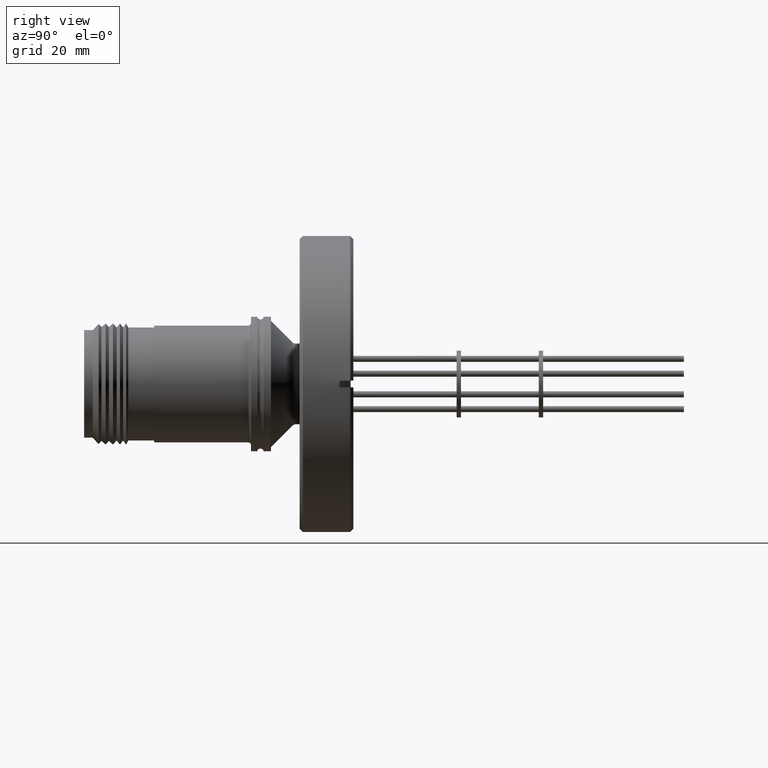
[diagram: clean part render]
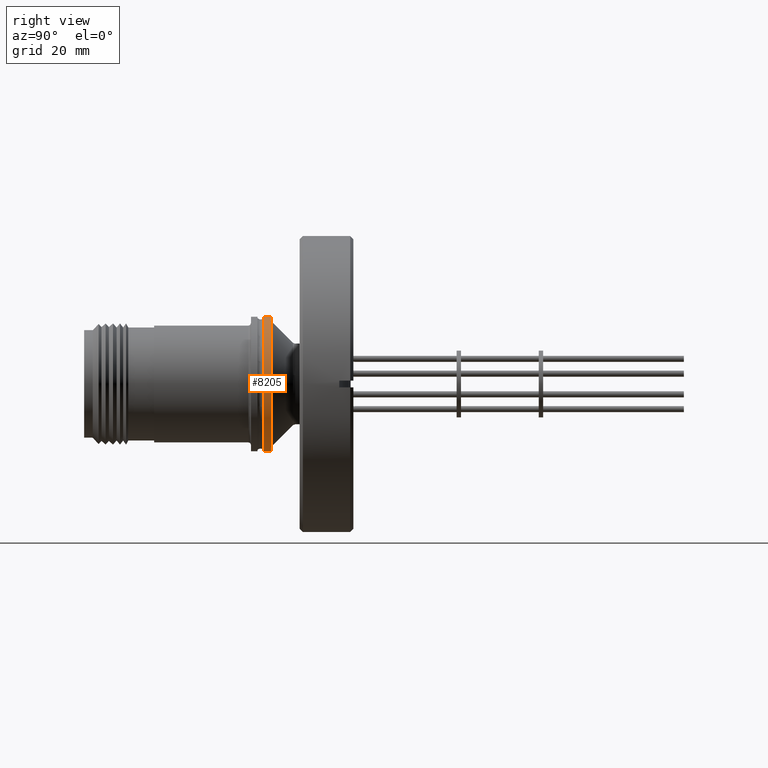
[diagram: same view with one face highlighted and labeled with its STEP entity id]
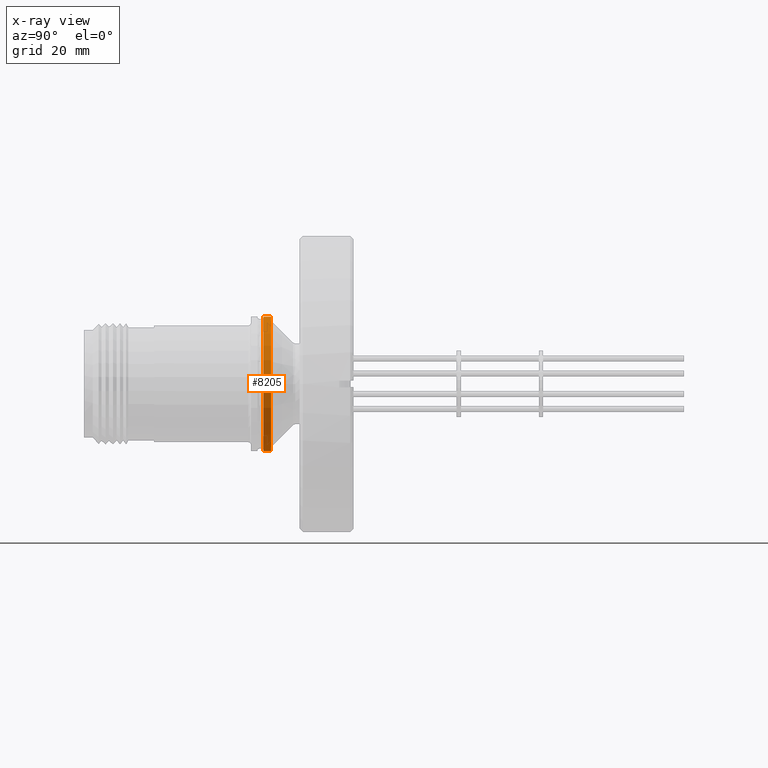
[diagram: x-ray of the same camera — body ghosted, the highlighted face saturated]
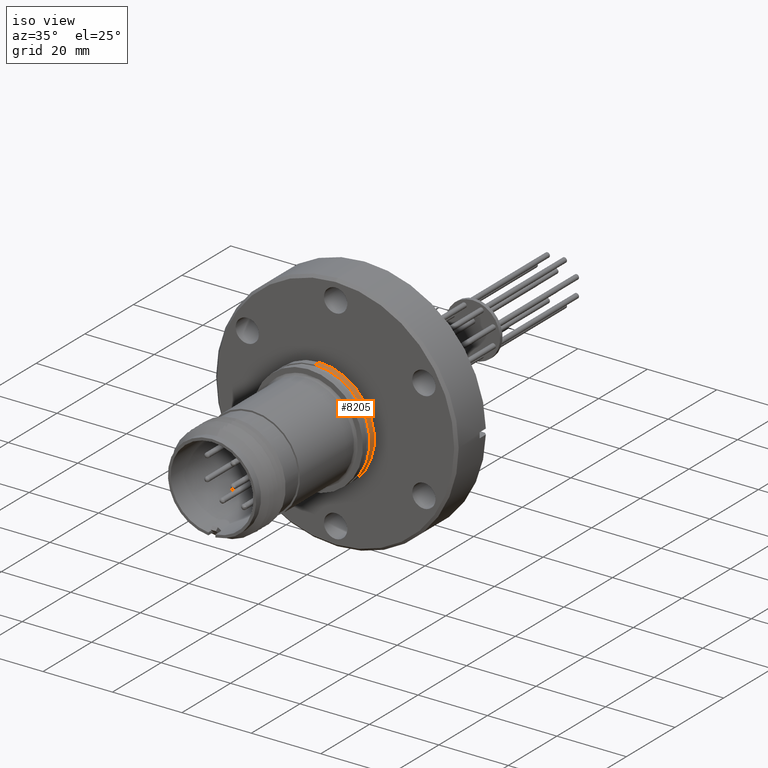
[diagram: same view with one face highlighted and labeled with its STEP entity id]
A machine part, right view. The second image highlights one B-rep face of the part: STEP entity #8205.
The next image is the same camera in x-ray: the body ghosted, the highlighted face saturated — about 0% of this face is hidden behind the body in this view.
A second angle (iso view) of the same face is appended — the face is thin or edge-on in the first view.
In plain terms, the highlighted cylindrical surface (partial cylindrical patch) has radius 15.875 mm, axis along (0, -1, 0).
Its self-contained STEP definition (entity closure, byte-faithful):
#65 = DIRECTION ( 'NONE',  ( 0.0000000000000000000, 0.0000000000000000000, -1.000000000000000000 ) ) ;
#375 = CARTESIAN_POINT ( 'NONE',  ( 0.0000000000000000000, 0.9566508829132344100, 0.0000000000000000000 ) ) ;
#376 = DIRECTION ( 'NONE',  ( 0.0000000000000000000, -1.000000000000000000, 0.0000000000000000000 ) ) ;
#625 = FACE_OUTER_BOUND ( 'NONE', #13191, .T. ) ;
#629 = CYLINDRICAL_SURFACE ( 'NONE', #9067, 0.6250000000000014400 ) ;
#1495 = VERTEX_POINT ( 'NONE', #12959 ) ;
#1499 = VERTEX_POINT ( 'NONE', #12955 ) ;
#1668 = VERTEX_POINT ( 'NONE', #12762 ) ;
#4409 = CARTESIAN_POINT ( 'NONE',  ( 0.0000000000000000000, 0.9866508829132342200, -0.6250000000000014400 ) ) ;
#7096 = ORIENTED_EDGE ( 'NONE', *, *, #10077, .T. ) ;
#7150 = ORIENTED_EDGE ( 'NONE', *, *, #10166, .F. ) ;
#7154 = ORIENTED_EDGE ( 'NONE', *, *, #10052, .F. ) ;
#7156 = ORIENTED_EDGE ( 'NONE', *, *, #10058, .T. ) ;
#8205 = ADVANCED_FACE ( 'NONE', ( #625 ), #629, .T. ) ;
#8943 = CARTESIAN_POINT ( 'NONE',  ( 0.0000000000000000000, 0.9156508829132346000, 0.0000000000000000000 ) ) ;
#8944 = DIRECTION ( 'NONE',  ( 0.0000000000000000000, -1.000000000000000000, 0.0000000000000000000 ) ) ;
#8945 = DIRECTION ( 'NONE',  ( 0.0000000000000000000, 0.0000000000000000000, -1.000000000000000000 ) ) ;
#8966 = CARTESIAN_POINT ( 'NONE',  ( 0.0000000000000000000, 0.9866508829132342200, 0.0000000000000000000 ) ) ;
#8967 = DIRECTION ( 'NONE',  ( 0.0000000000000000000, -1.000000000000000000, 0.0000000000000000000 ) ) ;
#8968 = DIRECTION ( 'NONE',  ( 0.0000000000000000000, 0.0000000000000000000, -1.000000000000000000 ) ) ;
#9046 = DIRECTION ( 'NONE',  ( 0.0000000000000000000, -1.000000000000000000, 0.0000000000000000000 ) ) ;
#9055 = CARTESIAN_POINT ( 'NONE',  ( 7.654042494670973900E-017, 0.9566508829132344100, 0.6250000000000014400 ) ) ;
#9067 = AXIS2_PLACEMENT_3D ( 'NONE', #375, #376, #65 ) ;
#9653 = VERTEX_POINT ( 'NONE', #4409 ) ;
#10052 = EDGE_CURVE ( 'NONE', #1495, #1668, #10717, .T. ) ;
#10058 = EDGE_CURVE ( 'NONE', #9653, #1499, #10725, .T. ) ;
#10077 = EDGE_CURVE ( 'NONE', #1499, #1668, #10751, .T. ) ;
#10166 = EDGE_CURVE ( 'NONE', #9653, #1495, #10887, .T. ) ;
#10717 = CIRCLE ( 'NONE', #11021, 0.6250000000000014400 ) ;
#10725 = CIRCLE ( 'NONE', #11025, 0.6250000000000014400 ) ;
#10751 = LINE ( 'NONE', #9055, #10754 ) ;
#10754 = VECTOR ( 'NONE', #9046, 39.37007874015748100 ) ;
#10887 = LINE ( 'NONE', #13336, #10890 ) ;
#10890 = VECTOR ( 'NONE', #13337, 39.37007874015748100 ) ;
#11021 = AXIS2_PLACEMENT_3D ( 'NONE', #8943, #8944, #8945 ) ;
#11025 = AXIS2_PLACEMENT_3D ( 'NONE', #8966, #8967, #8968 ) ;
#12762 = CARTESIAN_POINT ( 'NONE',  ( 7.654042494670973900E-017, 0.9156508829132346000, 0.6250000000000014400 ) ) ;
#12955 = CARTESIAN_POINT ( 'NONE',  ( 7.654042494670973900E-017, 0.9866508829132342200, 0.6250000000000014400 ) ) ;
#12959 = CARTESIAN_POINT ( 'NONE',  ( 0.0000000000000000000, 0.9156508829132346000, -0.6250000000000014400 ) ) ;
#13191 = EDGE_LOOP ( 'NONE', ( #7156, #7096, #7154, #7150 ) ) ;
#13336 = CARTESIAN_POINT ( 'NONE',  ( 0.0000000000000000000, 0.9566508829132344100, -0.6250000000000014400 ) ) ;
#13337 = DIRECTION ( 'NONE',  ( 0.0000000000000000000, -1.000000000000000000, 0.0000000000000000000 ) ) ;